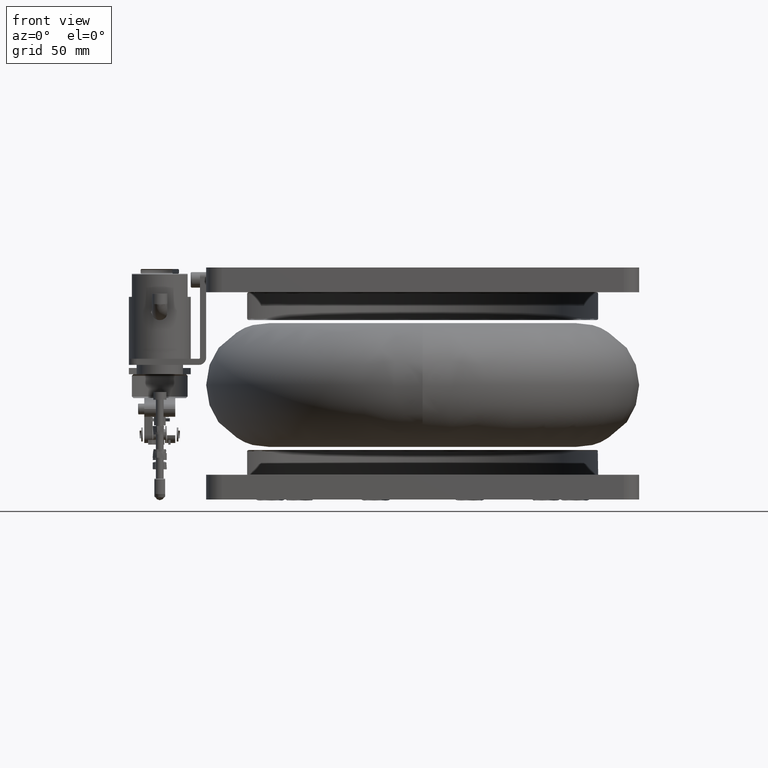
[diagram: clean part render]
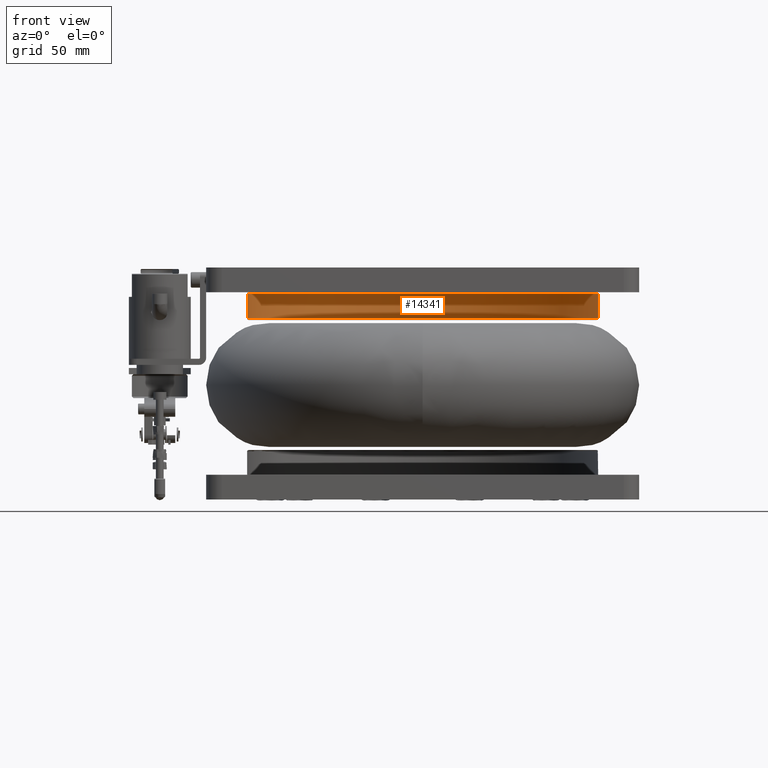
[diagram: same view with one face highlighted and labeled with its STEP entity id]
A machine part, front view. The second image highlights one B-rep face of the part: STEP entity #14341.
In plain terms, the highlighted cylindrical surface (bore or boss wall) has radius 113.5 mm, axis along (0, 0, 1).
Its self-contained STEP definition (entity closure, byte-faithful):
#672 = EDGE_CURVE ( 'NONE', #33040, #33040, #29876, .T. ) ;
#1183 = DIRECTION ( 'NONE',  ( 0.000000000000000000, 0.000000000000000000, 1.000000000000000000 ) ) ;
#3025 = CARTESIAN_POINT ( 'NONE',  ( 196.0231046488799507, -117.3692932522426418, 206.0000000000000568 ) ) ;
#3176 = CYLINDRICAL_SURFACE ( 'NONE', #5670, 113.5000000000000142 ) ;
#4006 = DIRECTION ( 'NONE',  ( -0.000000000000000000, -0.000000000000000000, -1.000000000000000000 ) ) ;
#5670 = AXIS2_PLACEMENT_3D ( 'NONE', #6530, #1183, #22141 ) ;
#6530 = CARTESIAN_POINT ( 'NONE',  ( 129.3094785136830751, -25.54586439068695825, 223.0000000000000000 ) ) ;
#6583 = CARTESIAN_POINT ( 'NONE',  ( 129.3094785136830751, -25.54586439068695825, 222.0000000000000000 ) ) ;
#9043 = EDGE_LOOP ( 'NONE', ( #10778 ) ) ;
#10778 = ORIENTED_EDGE ( 'NONE', *, *, #25739, .F. ) ;
#11600 = AXIS2_PLACEMENT_3D ( 'NONE', #6583, #4006, #16064 ) ;
#11881 = FACE_OUTER_BOUND ( 'NONE', #28647, .T. ) ;
#14341 = ADVANCED_FACE ( 'NONE', ( #11881, #23944 ), #3176, .F. ) ;
#16064 = DIRECTION ( 'NONE',  ( 1.000000000000000000, 0.000000000000000000, 0.000000000000000000 ) ) ;
#17492 = VERTEX_POINT ( 'NONE', #28958 ) ;
#22141 = DIRECTION ( 'NONE',  ( 1.000000000000000000, 0.000000000000000000, 0.000000000000000000 ) ) ;
#22812 = DIRECTION ( 'NONE',  ( -0.000000000000000000, -0.000000000000000000, -1.000000000000000000 ) ) ;
#23944 = FACE_OUTER_BOUND ( 'NONE', #9043, .T. ) ;
#25739 = EDGE_CURVE ( 'NONE', #17492, #17492, #28018, .T. ) ;
#28018 = CIRCLE ( 'NONE', #11600, 113.5000000000000142 ) ;
#28647 = EDGE_LOOP ( 'NONE', ( #32882 ) ) ;
#28958 = CARTESIAN_POINT ( 'NONE',  ( 242.8094785136831035, -25.54586439068695825, 222.0000000000000000 ) ) ;
#29876 = CIRCLE ( 'NONE', #33651, 113.5000000000000142 ) ;
#32882 = ORIENTED_EDGE ( 'NONE', *, *, #672, .T. ) ;
#33040 = VERTEX_POINT ( 'NONE', #3025 ) ;
#33651 = AXIS2_PLACEMENT_3D ( 'NONE', #37992, #22812, #34840 ) ;
#34840 = DIRECTION ( 'NONE',  ( 0.5877852522924834622, -0.8090169943749397907, 0.000000000000000000 ) ) ;
#37992 = CARTESIAN_POINT ( 'NONE',  ( 129.3094785136830751, -25.54586439068695825, 206.0000000000000568 ) ) ;